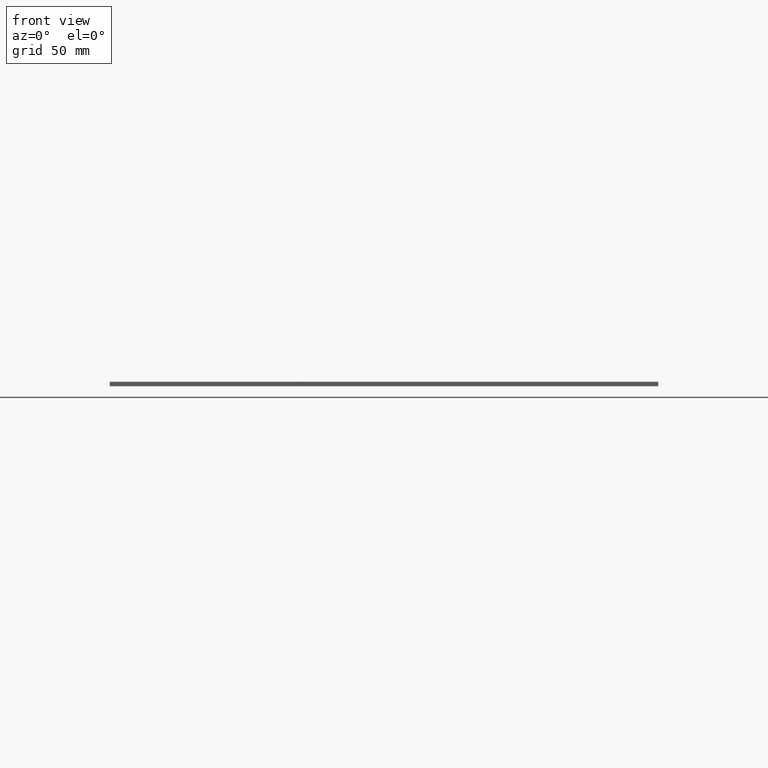
[diagram: clean part render]
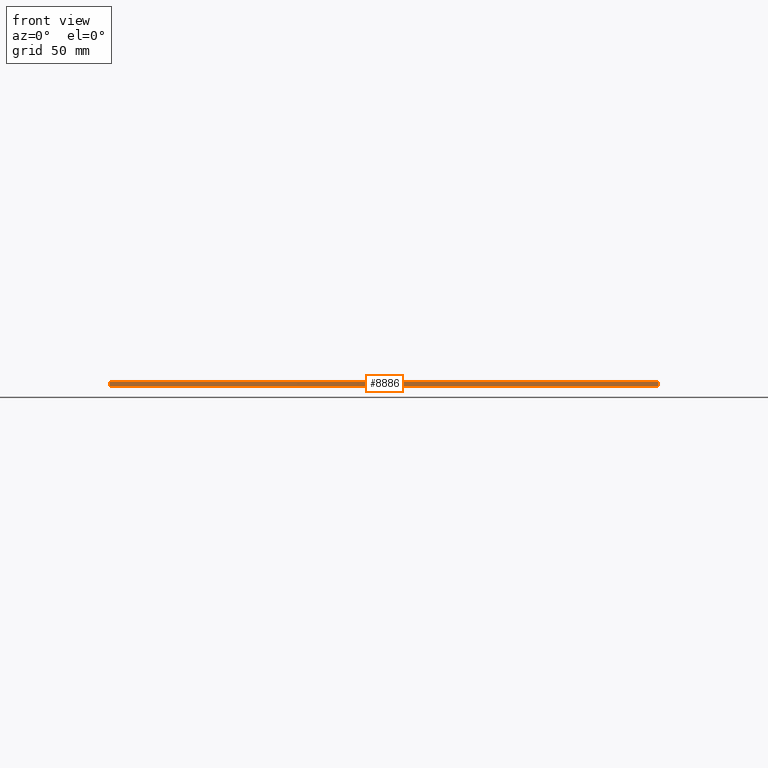
[diagram: same view with one face highlighted and labeled with its STEP entity id]
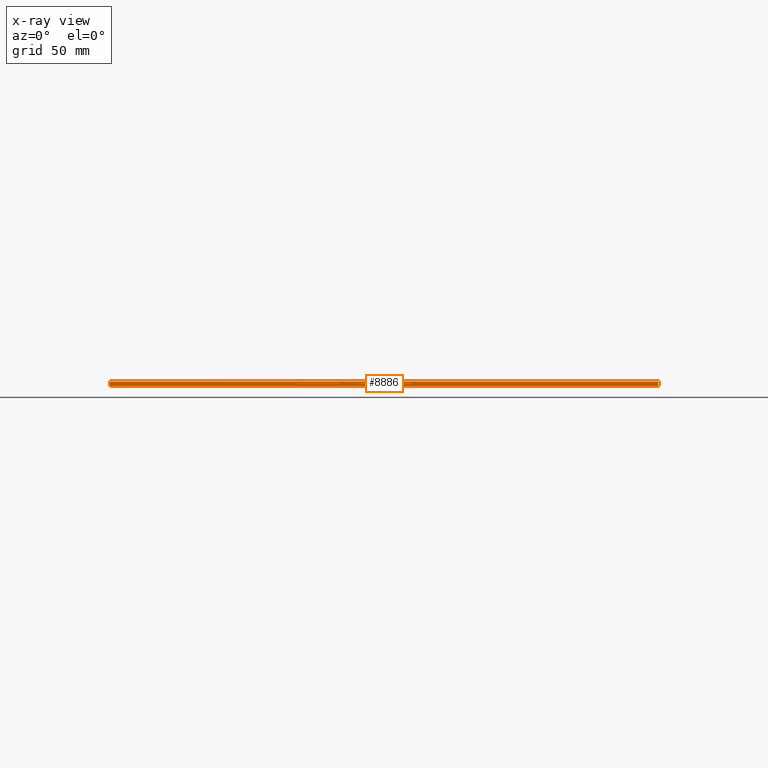
[diagram: x-ray of the same camera — body ghosted, the highlighted face saturated]
A machine part, front view. The second image highlights one B-rep face of the part: STEP entity #8886.
The next image is the same camera in x-ray: the body ghosted, the highlighted face saturated — about 2% of this face is hidden behind the body in this view.
In plain terms, the highlighted planar face has unit normal (0, -1, 0).
Its self-contained STEP definition (entity closure, byte-faithful):
#133=FACE_BOUND('',#1395,.T.);
#134=FACE_BOUND('',#1396,.T.);
#548=PLANE('',#9336);
#970=FACE_OUTER_BOUND('',#1394,.T.);
#1394=EDGE_LOOP('',(#8437,#8438,#8439,#8440));
#1395=EDGE_LOOP('',(#8441,#8442,#8443,#8444));
#1396=EDGE_LOOP('',(#8445,#8446,#8447,#8448));
#1802=LINE('',#12266,#3042);
#2574=LINE('',#13810,#3814);
#2591=LINE('',#13845,#3831);
#2596=LINE('',#13853,#3836);
#2597=LINE('',#13855,#3837);
#2599=LINE('',#13860,#3839);
#2602=LINE('',#13866,#3842);
#2604=LINE('',#13869,#3844);
#2631=LINE('',#13926,#3871);
#2635=LINE('',#13933,#3875);
#2636=LINE('',#13936,#3876);
#2637=LINE('',#13937,#3877);
#3042=VECTOR('',#9778,10.);
#3814=VECTOR('',#11316,10.);
#3831=VECTOR('',#11347,10.);
#3836=VECTOR('',#11356,10.);
#3837=VECTOR('',#11359,10.);
#3839=VECTOR('',#11363,10.);
#3842=VECTOR('',#11370,10.);
#3844=VECTOR('',#11374,10.);
#3871=VECTOR('',#11421,10.);
#3875=VECTOR('',#11427,10.);
#3876=VECTOR('',#11430,10.);
#3877=VECTOR('',#11431,10.);
#4291=VERTEX_POINT('',#12263);
#4292=VERTEX_POINT('',#12265);
#4680=VERTEX_POINT('',#13807);
#4681=VERTEX_POINT('',#13809);
#4690=VERTEX_POINT('',#13841);
#4692=VERTEX_POINT('',#13844);
#4694=VERTEX_POINT('',#13857);
#4696=VERTEX_POINT('',#13865);
#4715=VERTEX_POINT('',#13923);
#4716=VERTEX_POINT('',#13925);
#4718=VERTEX_POINT('',#13931);
#4719=VERTEX_POINT('',#13935);
#5130=EDGE_CURVE('',#4292,#4291,#1802,.T.);
#5902=EDGE_CURVE('',#4681,#4680,#2574,.T.);
#5919=EDGE_CURVE('',#4692,#4690,#2591,.T.);
#5924=EDGE_CURVE('',#4690,#4292,#2596,.T.);
#5925=EDGE_CURVE('',#4291,#4692,#2597,.T.);
#5927=EDGE_CURVE('',#4680,#4694,#2599,.T.);
#5930=EDGE_CURVE('',#4696,#4681,#2602,.T.);
#5932=EDGE_CURVE('',#4694,#4696,#2604,.T.);
#5959=EDGE_CURVE('',#4715,#4716,#2631,.T.);
#5963=EDGE_CURVE('',#4715,#4718,#2635,.T.);
#5964=EDGE_CURVE('',#4719,#4718,#2636,.T.);
#5965=EDGE_CURVE('',#4716,#4719,#2637,.T.);
#8437=ORIENTED_EDGE('',*,*,#5959,.F.);
#8438=ORIENTED_EDGE('',*,*,#5963,.T.);
#8439=ORIENTED_EDGE('',*,*,#5964,.F.);
#8440=ORIENTED_EDGE('',*,*,#5965,.F.);
#8441=ORIENTED_EDGE('',*,*,#5919,.T.);
#8442=ORIENTED_EDGE('',*,*,#5924,.T.);
#8443=ORIENTED_EDGE('',*,*,#5130,.T.);
#8444=ORIENTED_EDGE('',*,*,#5925,.T.);
#8445=ORIENTED_EDGE('',*,*,#5930,.T.);
#8446=ORIENTED_EDGE('',*,*,#5902,.T.);
#8447=ORIENTED_EDGE('',*,*,#5927,.T.);
#8448=ORIENTED_EDGE('',*,*,#5932,.T.);
#8886=ADVANCED_FACE('',(#970,#133,#134),#548,.T.);
#9336=AXIS2_PLACEMENT_3D('',#13934,#11428,#11429);
#9778=DIRECTION('',(0.,0.,-1.));
#11316=DIRECTION('',(-1.,-6.36458917735668E-17,0.));
#11347=DIRECTION('',(0.,0.,1.));
#11356=DIRECTION('',(1.,6.36458917735668E-17,0.));
#11359=DIRECTION('',(-1.,-6.36458917735668E-17,0.));
#11363=DIRECTION('',(0.,0.,1.));
#11370=DIRECTION('',(0.,0.,-1.));
#11374=DIRECTION('',(1.,6.36458917735668E-17,0.));
#11421=DIRECTION('',(1.,6.36458917735668E-17,0.));
#11427=DIRECTION('',(0.,0.,-1.));
#11428=DIRECTION('center_axis',(6.36458917735668E-17,-1.,0.));
#11429=DIRECTION('ref_axis',(-1.,-6.36458917735668E-17,0.));
#11430=DIRECTION('',(-1.,-6.36458917735668E-17,0.));
#11431=DIRECTION('',(0.,0.,-1.));
#12263=CARTESIAN_POINT('',(13.7000000000002,-96.7,-1.2));
#12265=CARTESIAN_POINT('',(13.7000000000002,-96.7,-1.1));
#12266=CARTESIAN_POINT('',(13.7000000000002,-96.7,-0.55));
#13807=CARTESIAN_POINT('',(-45.2999999999999,-96.7,-1.2));
#13809=CARTESIAN_POINT('',(-23.7999999999999,-96.6999999999999,-1.2));
#13810=CARTESIAN_POINT('',(51.9750000000001,-96.7,-1.2));
#13841=CARTESIAN_POINT('',(-13.7999999999998,-96.7,-1.1));
#13844=CARTESIAN_POINT('',(-13.7999999999998,-96.7,-1.2));
#13845=CARTESIAN_POINT('',(-13.7999999999998,-96.7,-0.55));
#13853=CARTESIAN_POINT('',(69.1000000000001,-96.7,-1.1));
#13855=CARTESIAN_POINT('',(69.1000000000001,-96.7,-1.2));
#13857=CARTESIAN_POINT('',(-45.2999999999999,-96.7,-1.1));
#13860=CARTESIAN_POINT('',(-45.2999999999999,-96.7,-0.55));
#13865=CARTESIAN_POINT('',(-23.7999999999999,-96.6999999999999,-1.1));
#13866=CARTESIAN_POINT('',(-23.7999999999999,-96.7,-0.55));
#13869=CARTESIAN_POINT('',(51.9750000000001,-96.7,-1.1));
#13923=CARTESIAN_POINT('',(-140.6,-96.7,0.));
#13925=CARTESIAN_POINT('',(138.5,-96.7,0.));
#13926=CARTESIAN_POINT('',(-140.6,-96.7,0.));
#13931=CARTESIAN_POINT('',(-140.6,-96.7,-2.35));
#13933=CARTESIAN_POINT('',(-140.6,-96.7,0.));
#13934=CARTESIAN_POINT('Origin',(138.5,-96.7,0.));
#13935=CARTESIAN_POINT('',(138.5,-96.7,-2.35));
#13936=CARTESIAN_POINT('',(-140.6,-96.7,-2.35));
#13937=CARTESIAN_POINT('',(138.5,-96.7,0.));